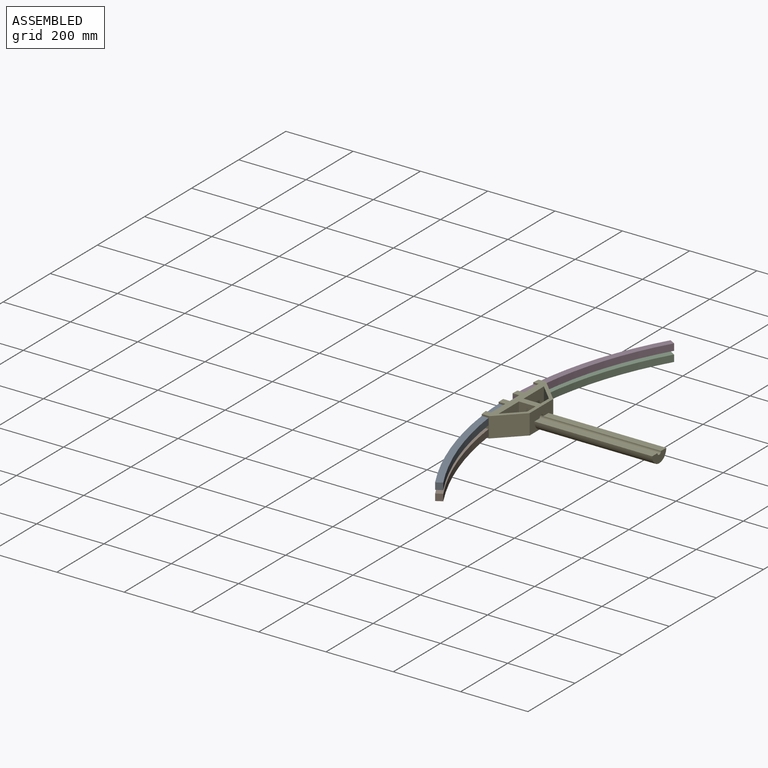
[diagram: assembled view]
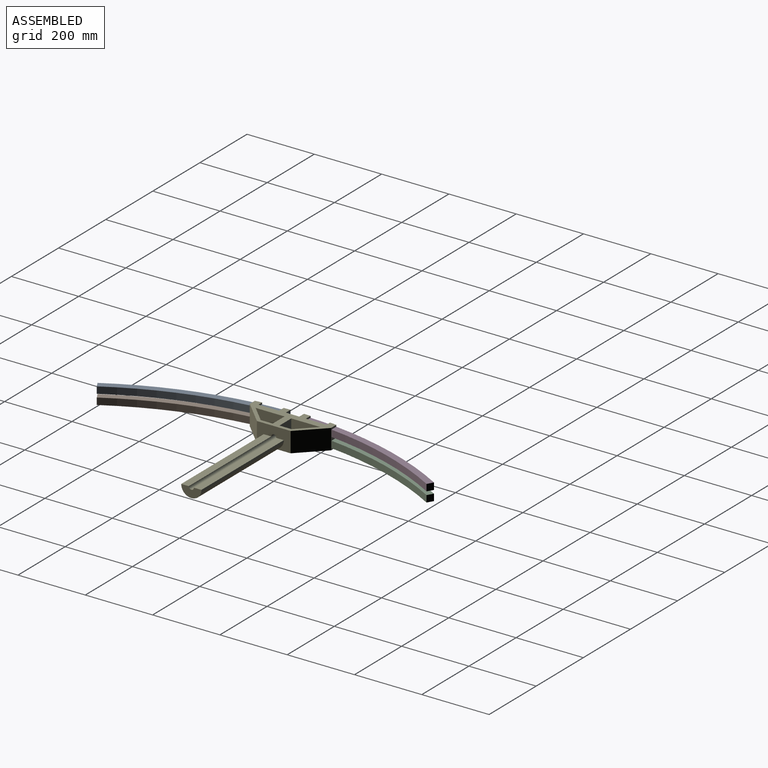
[diagram: assembled view, second angle]
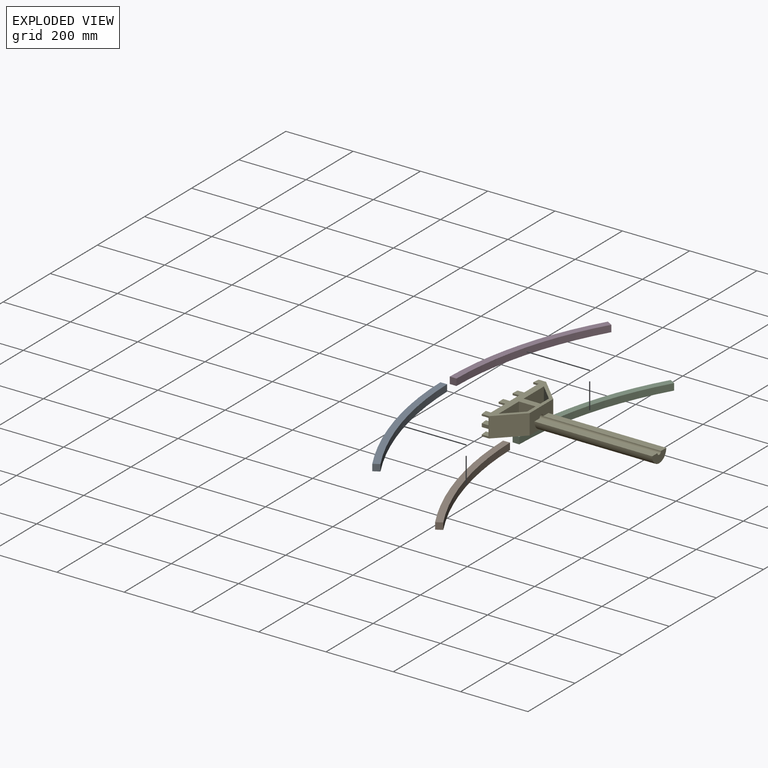
[diagram: exploded view]
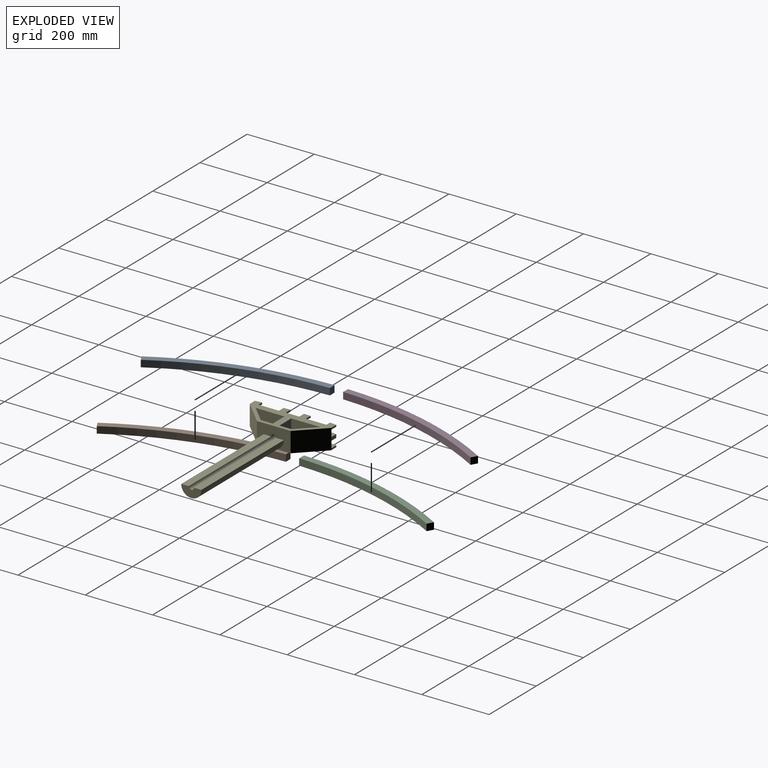
[diagram: exploded view, second angle]
ASSEMBLY  parts=5 mates=2
PART A: 6 faces, bbox 480.3x20x151.1 mm
  f0: plane 480.33x151.09mm, normal (0,1,0), area 9969.8mm2, adj f1,f3,f4,f5
  f1: cylinder r=1000mm len=479.93mm, axis (0,1,0), area 10070.5mm2, adj f0,f2,f4,f5
  f2: plane 480.33x151.09mm, normal (0,-1,0), area 9969.8mm2, adj f1,f3,f4,f5
  f3: cylinder r=980mm len=470.33mm, axis (0,1,0), area 9869.1mm2, adj f0,f2,f4,f5
  f4: plane 20x17.32mm, normal (-0.87,0,-0.5), area 400mm2, adj f0,f1,f2,f3
  f5: plane 20x20mm, normal (1,0,0.02), area 400mm2, adj f0,f1,f2,f3
PART B: same geometry as A
PART C: same geometry as A
PART D: same geometry as A
PART E: 70 faces, bbox 241.7x60x449.8 mm
  f0: plane 14.41x10mm, normal (0,0,1), area 131mm2, adj f7,f57,f62,f68
  f1: plane 350x22.5mm, normal (0,-1,0), area 7875mm2, adj f2,f67,f68,f69
  f2: plane 100x60mm, normal (0,0,-1), area 4497.9mm2, adj f1,f44,f45,f54,f55,f66,f68,f69
  f3: plane 19.8x10mm, normal (1,0,0), area 198mm2, adj f6,f29,f57,f62
  f4: plane 19.8x5mm, normal (1,0,0), area 99mm2, adj f30,f35,f54,f59
  f5: cylinder r=1000mm len=20mm, axis (0,1,0), area 100mm2, adj f34,f36,f55,f64
  f6: cylinder r=1000mm len=20mm, axis (0,1,0), area 200.1mm2, adj f3,f7,f57,f62
  f7: plane 19.8x10mm, normal (-1,0,0), area 198mm2, adj f0,f6,f57,f62
  f8: plane 19.8x5mm, normal (-1,0,0), area 99mm2, adj f10,f35,f54,f59
  f9: plane 14.41x10mm, normal (0,0,1), area 131mm2, adj f11,f58,f63,f68
  f10: plane 40x5mm, normal (0,0,1), area 200mm2, adj f8,f12,f54,f59,f60
  f11: plane 19.8x10mm, normal (1,0,0), area 198mm2, adj f9,f14,f58,f63
  f12: plane 19.8x5mm, normal (1,0,0), area 99mm2, adj f10,f39,f54,f60
  f13: cylinder r=1000mm len=20mm, axis (0,1,0), area 100mm2, adj f38,f40,f55,f65
  f14: cylinder r=1000mm len=20mm, axis (0,1,0), area 200.1mm2, adj f11,f15,f58,f63
  f15: plane 19.8x10mm, normal (-1,0,0), area 198mm2, adj f14,f17,f58,f63
  f16: plane 19.8x5mm, normal (-1,0,0), area 99mm2, adj f18,f39,f54,f60
  f17: plane 60.86x10mm, normal (0,0,1), area 608.6mm2, adj f15,f19,f58,f63
  f18: plane 60.86x5mm, normal (0,0,1), area 304.3mm2, adj f16,f20,f54,f60
  f19: plane 15.5x10mm, normal (1,0,0), area 155mm2, adj f17,f22,f58,f63
  f20: plane 15.5x5mm, normal (1,0,0), area 77.5mm2, adj f18,f43,f54,f60
  f21: cylinder r=1000mm len=20mm, axis (0,1,0), area 100.6mm2, adj f23,f42,f55,f65
  f22: cylinder r=1000mm len=20mm, axis (0,1,0), area 201.2mm2, adj f19,f23,f58,f63
  f23: plane 60x21.81mm, normal (-1,0,0), area 502.7mm2, adj f21,f22,f43,f44,f54,f55,f56,f58
  f24: plane 60x21.81mm, normal (1,0,0), area 502.7mm2, adj f25,f26,f45,f46,f54,f55,f56,f57
  f25: cylinder r=1000mm len=20mm, axis (0,1,0), area 100.6mm2, adj f24,f47,f55,f64
  f26: cylinder r=1000mm len=20mm, axis (0,1,0), area 201.2mm2, adj f24,f27,f57,f62
  f27: plane 15.5x10mm, normal (-1,0,0), area 155mm2, adj f26,f29,f57,f62
  f28: plane 15.5x5mm, normal (-1,0,0), area 77.5mm2, adj f30,f46,f54,f59
  f29: plane 60.86x10mm, normal (0,0,1), area 608.6mm2, adj f3,f27,f57,f62
  f30: plane 60.86x5mm, normal (0,0,1), area 304.3mm2, adj f4,f28,f54,f59
  f31: plane 60x35.86mm, normal (0,0,1), area 2151.5mm2, adj f32,f53,f54,f55
  f32: plane 60x50mm, normal (0.71,0,0.71), area 4242.6mm2, adj f31,f33,f54,f55
  f33: plane 85.86x60mm, normal (0,0,-1), area 5151.5mm2, adj f32,f53,f54,f55
  f34: plane 19.8x5mm, normal (1,0,0), area 99mm2, adj f5,f51,f55,f64
  f35: cylinder r=1000mm len=20mm, axis (0,1,0), area 100mm2, adj f4,f8,f54,f59
  f36: plane 19.8x5mm, normal (-1,0,0), area 99mm2, adj f5,f37,f55,f64
  f37: plane 40x5mm, normal (0,0,1), area 200mm2, adj f36,f38,f55,f64,f65
  f38: plane 19.8x5mm, normal (1,0,0), area 99mm2, adj f13,f37,f55,f65
  f39: cylinder r=1000mm len=20mm, axis (0,1,0), area 100mm2, adj f12,f16,f54,f60
  f40: plane 19.8x5mm, normal (-1,0,0), area 99mm2, adj f13,f41,f55,f65
  f41: plane 60.86x5mm, normal (0,0,1), area 304.3mm2, adj f40,f42,f55,f65
  f42: plane 15.5x5mm, normal (1,0,0), area 77.5mm2, adj f21,f41,f55,f65
  f43: cylinder r=1000mm len=20mm, axis (0,1,0), area 100.6mm2, adj f20,f23,f54,f60
  f44: plane 70.86x70.86mm, normal (-0.71,0,-0.71), area 6012.5mm2, adj f2,f23,f54,f55
  f45: plane 70.86x70.86mm, normal (0.71,0,-0.71), area 6012.5mm2, adj f2,f24,f54,f55
  f46: cylinder r=1000mm len=20mm, axis (0,1,0), area 100.6mm2, adj f24,f28,f54,f59
  f47: plane 15.5x5mm, normal (-1,0,0), area 77.5mm2, adj f25,f51,f55,f64
  f48: plane 60x50mm, normal (1,0,0), area 3000mm2, adj f49,f52,f54,f55
  f49: plane 85.86x60mm, normal (0,0,-1), area 5151.5mm2, adj f48,f50,f54,f55
  f50: plane 60x50mm, normal (-0.71,0,0.71), area 4242.6mm2, adj f49,f52,f54,f55
  f51: plane 60.86x5mm, normal (0,0,1), area 304.3mm2, adj f34,f47,f55,f64
  f52: plane 60x35.86mm, normal (0,0,1), area 2151.5mm2, adj f48,f50,f54,f55
  f53: plane 60x50mm, normal (-1,0,0), area 3000mm2, adj f31,f33,f54,f55
  f54: plane 241.72x99.8mm, normal (0,-1,0), area 9491.7mm2, adj f2,f4,f8,f10,f12,f16,f18,f20
  f55: plane 241.72x99.8mm, normal (0,1,0), area 9491.7mm2, adj f2,f5,f13,f21,f23,f24,f25,f31
  f56: cylinder r=980mm len=241.72mm, axis (0,-1,0), area 4827.3mm2, adj f23,f24,f57,f58,f59,f60,f68
  f57: plane 115.27x27.28mm, normal (0,-1,0), area 931.4mm2, adj f0,f3,f6,f7,f24,f26,f27,f29
  f58: plane 115.27x27.28mm, normal (0,-1,0), area 931.4mm2, adj f9,f11,f14,f15,f17,f19,f22,f23
  f59: plane 120.86x27.28mm, normal (0,1,0), area 931.4mm2, adj f4,f8,f10,f24,f28,f30,f35,f46
  f60: plane 120.86x27.28mm, normal (0,1,0), area 931.4mm2, adj f10,f12,f16,f18,f20,f23,f39,f43
  f61: cylinder r=980mm len=241.72mm, axis (0,-1,0), area 4827.3mm2, adj f23,f24,f62,f63,f64,f65,f68
  f62: plane 115.27x27.28mm, normal (0,1,0), area 931.4mm2, adj f0,f3,f6,f7,f24,f26,f27,f29
  f63: plane 115.27x27.28mm, normal (0,1,0), area 931.4mm2, adj f9,f11,f14,f15,f17,f19,f22,f23
  f64: plane 120.86x27.28mm, normal (0,-1,0), area 931.4mm2, adj f5,f24,f25,f34,f36,f37,f47,f51
  f65: plane 120.86x27.28mm, normal (0,-1,0), area 931.4mm2, adj f13,f21,f23,f37,f38,f40,f41,f42
  f66: plane 350x22.5mm, normal (0,-1,0), area 7875mm2, adj f2,f67,f68,f69
  f67: plane 60x30mm, normal (0,0,-1), area 1325.4mm2, adj f1,f66,f68,f69
  f68: cylinder r=7.5mm len=430mm, axis (0,0,1), area 12016.4mm2, adj f0,f1,f2,f9,f56,f57,f58,f61
  f69: cylinder r=30mm len=350mm, axis (0,0,1), area 32986.7mm2, adj f1,f2,f66,f67
PLACE A rot(axis=(-0.58,-0.58,0.58),120deg) t=(-100,0,0)mm
PLACE B rot(axis=(-0.58,-0.58,0.58),120deg) t=(-100,0,-30)mm
PLACE C rot(axis=(0.58,-0.58,-0.58),120deg) t=(-100,0,0)mm
PLACE D rot(axis=(0.58,-0.58,-0.58),120deg) t=(-100,0,30)mm
PLACE E rot(axis=(-0.58,-0.58,0.58),120deg) t=(-100,0,0)mm fixed
MATE revolute B.f1 <-> E.f56  axis (0,0,-1) through (900,0,-15)mm
MATE revolute C.f1 <-> E.f56  axis (0,0,1) through (900,0,-15)mm
